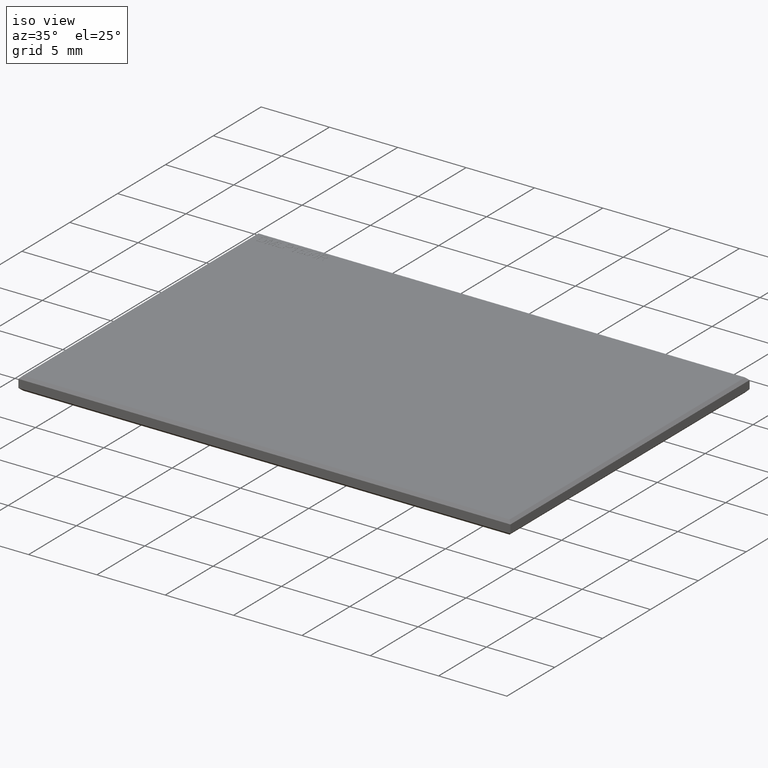
[diagram: clean part render]
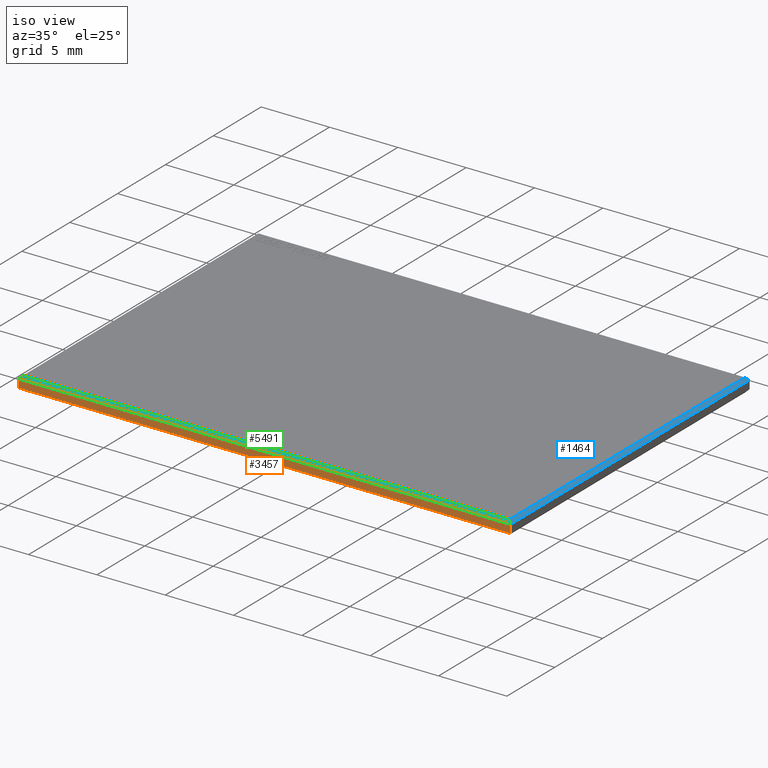
[diagram: same view with three faces highlighted in distinct colors, each labeled with its STEP entity id]
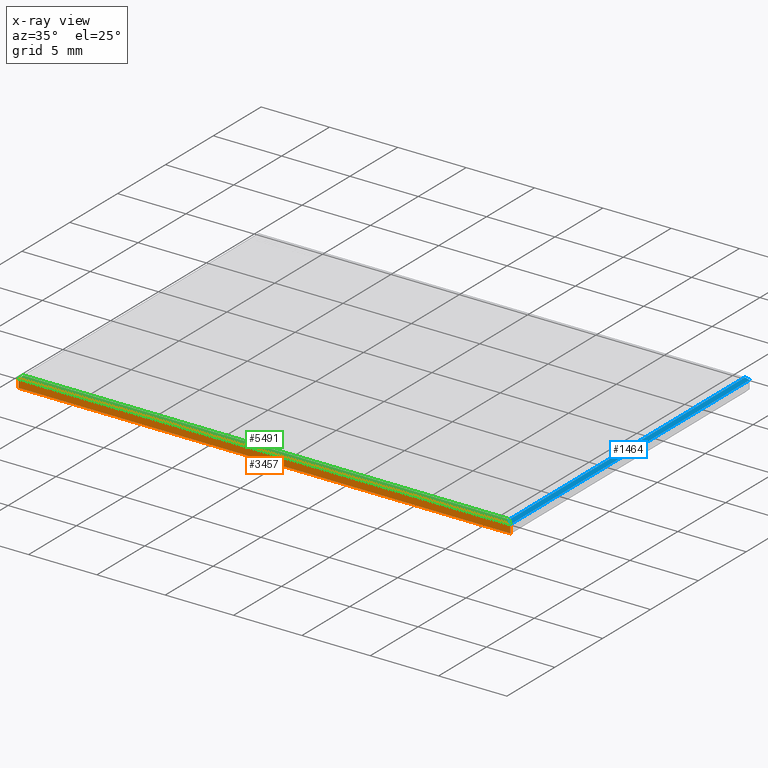
[diagram: x-ray of the same camera — body ghosted, the three highlighted faces saturated]
A machine part, iso view with three faces highlighted in distinct colors.
The next image is the same camera in x-ray (body ghosted, the three faces saturated) — at least one of them is partly hidden behind the body in this view.
Their STEP definitions:

[orange] entity #3457 — the highlighted planar face has unit normal (0, 1, 0).
#156 = EDGE_CURVE ( 'NONE', #203, #3652, #6655, .T. ) ;
#203 = VERTEX_POINT ( 'NONE', #1794 ) ;
#443 = CARTESIAN_POINT ( 'NONE',  ( -18.00000000000000400, -12.49999999999999500, 0.2999999999999977700 ) ) ;
#504 = EDGE_LOOP ( 'NONE', ( #3409, #808, #5786, #2349 ) ) ;
#727 = VERTEX_POINT ( 'NONE', #2726 ) ;
#808 = ORIENTED_EDGE ( 'NONE', *, *, #1823, .T. ) ;
#820 = CARTESIAN_POINT ( 'NONE',  ( -18.00000000000000400, -12.49999999999999500, -0.2999999999999942700 ) ) ;
#1020 = EDGE_CURVE ( 'NONE', #203, #4573, #1838, .T. ) ;
#1155 = EDGE_CURVE ( 'NONE', #3652, #727, #2708, .T. ) ;
#1326 = PLANE ( 'NONE',  #4048 ) ;
#1521 = VECTOR ( 'NONE', #5322, 1000.000000000000000 ) ;
#1794 = CARTESIAN_POINT ( 'NONE',  ( 17.99999999999999600, -12.49999999999999500, 0.2999999999999977100 ) ) ;
#1823 = EDGE_CURVE ( 'NONE', #727, #4573, #3355, .T. ) ;
#1838 = LINE ( 'NONE', #6089, #4570 ) ;
#1853 = DIRECTION ( 'NONE',  ( 0.0000000000000000000, -0.0000000000000000000, 1.000000000000000000 ) ) ;
#1874 = DIRECTION ( 'NONE',  ( 1.000000000000000000, 0.0000000000000000000, 0.0000000000000000000 ) ) ;
#2349 = ORIENTED_EDGE ( 'NONE', *, *, #156, .T. ) ;
#2708 = LINE ( 'NONE', #3321, #1521 ) ;
#2726 = CARTESIAN_POINT ( 'NONE',  ( -18.00000000000000400, -12.49999999999999500, -0.2999999999999942700 ) ) ;
#3193 = VECTOR ( 'NONE', #1874, 1000.000000000000000 ) ;
#3320 = DIRECTION ( 'NONE',  ( -1.000000000000000000, 0.0000000000000000000, 0.0000000000000000000 ) ) ;
#3321 = CARTESIAN_POINT ( 'NONE',  ( -18.00000000000000400, -12.49999999999999500, 0.5000000000000000000 ) ) ;
#3355 = LINE ( 'NONE', #820, #3193 ) ;
#3409 = ORIENTED_EDGE ( 'NONE', *, *, #1155, .T. ) ;
#3457 = ADVANCED_FACE ( 'NONE', ( #4849 ), #1326, .F. ) ;
#3551 = DIRECTION ( 'NONE',  ( -0.0000000000000000000, -0.0000000000000000000, -1.000000000000000000 ) ) ;
#3652 = VERTEX_POINT ( 'NONE', #443 ) ;
#4048 = AXIS2_PLACEMENT_3D ( 'NONE', #4397, #4908, #1853 ) ;
#4231 = VECTOR ( 'NONE', #3320, 1000.000000000000000 ) ;
#4397 = CARTESIAN_POINT ( 'NONE',  ( -18.00000000000000400, -12.49999999999999500, 0.5000000000000000000 ) ) ;
#4570 = VECTOR ( 'NONE', #3551, 1000.000000000000000 ) ;
#4573 = VERTEX_POINT ( 'NONE', #4984 ) ;
#4849 = FACE_OUTER_BOUND ( 'NONE', #504, .T. ) ;
#4908 = DIRECTION ( 'NONE',  ( 0.0000000000000000000, 1.000000000000000000, 0.0000000000000000000 ) ) ;
#4984 = CARTESIAN_POINT ( 'NONE',  ( 17.99999999999999600, -12.49999999999999500, -0.2999999999999942700 ) ) ;
#5322 = DIRECTION ( 'NONE',  ( -0.0000000000000000000, -0.0000000000000000000, -1.000000000000000000 ) ) ;
#5786 = ORIENTED_EDGE ( 'NONE', *, *, #1020, .F. ) ;
#5864 = CARTESIAN_POINT ( 'NONE',  ( -18.00000000000000400, -12.49999999999999500, 0.2999999999999977700 ) ) ;
#6089 = CARTESIAN_POINT ( 'NONE',  ( 17.99999999999999600, -12.49999999999999500, 0.5000000000000000000 ) ) ;
#6655 = LINE ( 'NONE', #5864, #4231 ) ;

[blue] entity #1464 — the highlighted planar face has unit normal (0.7071, 0, 0.7071).
#56 = VECTOR ( 'NONE', #1720, 999.9999999999998900 ) ;
#203 = VERTEX_POINT ( 'NONE', #1794 ) ;
#217 = EDGE_CURVE ( 'NONE', #5963, #1629, #4960, .T. ) ;
#256 = EDGE_CURVE ( 'NONE', #1629, #4775, #4788, .T. ) ;
#566 = ORIENTED_EDGE ( 'NONE', *, *, #5430, .F. ) ;
#573 = ORIENTED_EDGE ( 'NONE', *, *, #217, .F. ) ;
#737 = EDGE_CURVE ( 'NONE', #203, #5963, #5835, .T. ) ;
#795 = ORIENTED_EDGE ( 'NONE', *, *, #256, .F. ) ;
#818 = EDGE_LOOP ( 'NONE', ( #5164, #566, #795, #573 ) ) ;
#890 = PLANE ( 'NONE',  #2369 ) ;
#1405 = DIRECTION ( 'NONE',  ( 0.7071067811865628900, 9.813077866773807700E-017, 0.7071067811865321400 ) ) ;
#1464 = ADVANCED_FACE ( 'NONE', ( #5829 ), #890, .T. ) ;
#1629 = VERTEX_POINT ( 'NONE', #3418 ) ;
#1720 = DIRECTION ( 'NONE',  ( -0.5773502691896123000, 0.5773502691896276200, 0.5773502691896375000 ) ) ;
#1794 = CARTESIAN_POINT ( 'NONE',  ( 17.99999999999999600, -12.49999999999999500, 0.2999999999999977100 ) ) ;
#1894 = CARTESIAN_POINT ( 'NONE',  ( 17.79999999999999700, 12.50000000000000500, 0.5000000000000000000 ) ) ;
#2023 = DIRECTION ( 'NONE',  ( 1.387778780781445700E-016, -1.000000000000000000, 0.0000000000000000000 ) ) ;
#2243 = VECTOR ( 'NONE', #3466, 1000.000000000000100 ) ;
#2369 = AXIS2_PLACEMENT_3D ( 'NONE', #4479, #1405, #4994 ) ;
#2408 = VECTOR ( 'NONE', #5467, 1000.000000000000000 ) ;
#3191 = LINE ( 'NONE', #5071, #5908 ) ;
#3418 = CARTESIAN_POINT ( 'NONE',  ( 17.79999999999999700, 12.30000000000000800, 0.5000000000000000000 ) ) ;
#3466 = DIRECTION ( 'NONE',  ( 0.5773502691896121900, 0.5773502691896275100, -0.5773502691896375000 ) ) ;
#4447 = CARTESIAN_POINT ( 'NONE',  ( 17.80000000000000100, -12.29999999999999700, 0.5000000000000000000 ) ) ;
#4479 = CARTESIAN_POINT ( 'NONE',  ( 17.80000000000000100, 2.470246229790973300E-015, 0.5000000000000000000 ) ) ;
#4705 = CARTESIAN_POINT ( 'NONE',  ( 17.99999999999999300, 12.50000000000000500, 0.2999999999999977700 ) ) ;
#4775 = VERTEX_POINT ( 'NONE', #4705 ) ;
#4788 = LINE ( 'NONE', #6518, #2243 ) ;
#4960 = LINE ( 'NONE', #1894, #2408 ) ;
#4994 = DIRECTION ( 'NONE',  ( 1.387778780781445700E-016, -1.000000000000000000, 0.0000000000000000000 ) ) ;
#5071 = CARTESIAN_POINT ( 'NONE',  ( 17.99999999999999600, -12.49999999999999500, 0.2999999999999977100 ) ) ;
#5164 = ORIENTED_EDGE ( 'NONE', *, *, #737, .F. ) ;
#5430 = EDGE_CURVE ( 'NONE', #4775, #203, #3191, .T. ) ;
#5467 = DIRECTION ( 'NONE',  ( -1.387778780781445700E-016, 1.000000000000000000, 0.0000000000000000000 ) ) ;
#5808 = CARTESIAN_POINT ( 'NONE',  ( 13.70000000000008300, -8.199999999999970900, 4.600000000000095600 ) ) ;
#5829 = FACE_OUTER_BOUND ( 'NONE', #818, .T. ) ;
#5835 = LINE ( 'NONE', #5808, #56 ) ;
#5908 = VECTOR ( 'NONE', #2023, 1000.000000000000000 ) ;
#5963 = VERTEX_POINT ( 'NONE', #4447 ) ;
#6518 = CARTESIAN_POINT ( 'NONE',  ( 11.86666666666694400, 6.366666666666795900, 6.433333333333313100 ) ) ;

[green] entity #5491 — the highlighted planar face has unit normal (-0, -0.7071, 0.7071).
#18 = EDGE_CURVE ( 'NONE', #3652, #3623, #285, .T. ) ;
#56 = VECTOR ( 'NONE', #1720, 999.9999999999998900 ) ;
#138 = ORIENTED_EDGE ( 'NONE', *, *, #156, .F. ) ;
#156 = EDGE_CURVE ( 'NONE', #203, #3652, #6655, .T. ) ;
#203 = VERTEX_POINT ( 'NONE', #1794 ) ;
#285 = LINE ( 'NONE', #4783, #5620 ) ;
#429 = AXIS2_PLACEMENT_3D ( 'NONE', #1043, #4616, #1548 ) ;
#443 = CARTESIAN_POINT ( 'NONE',  ( -18.00000000000000400, -12.49999999999999500, 0.2999999999999977700 ) ) ;
#700 = EDGE_CURVE ( 'NONE', #3623, #5963, #1601, .T. ) ;
#737 = EDGE_CURVE ( 'NONE', #203, #5963, #5835, .T. ) ;
#1043 = CARTESIAN_POINT ( 'NONE',  ( 0.0000000000000000000, -12.29999999999999700, 0.5000000000000000000 ) ) ;
#1548 = DIRECTION ( 'NONE',  ( -1.000000000000000000, 0.0000000000000000000, -0.0000000000000000000 ) ) ;
#1601 = LINE ( 'NONE', #5276, #4160 ) ;
#1696 = DIRECTION ( 'NONE',  ( 1.000000000000000000, 0.0000000000000000000, 0.0000000000000000000 ) ) ;
#1720 = DIRECTION ( 'NONE',  ( -0.5773502691896123000, 0.5773502691896276200, 0.5773502691896375000 ) ) ;
#1721 = DIRECTION ( 'NONE',  ( 0.5773502691896224000, 0.5773502691896224000, 0.5773502691896323900 ) ) ;
#1794 = CARTESIAN_POINT ( 'NONE',  ( 17.99999999999999600, -12.49999999999999500, 0.2999999999999977100 ) ) ;
#3009 = ORIENTED_EDGE ( 'NONE', *, *, #700, .F. ) ;
#3320 = DIRECTION ( 'NONE',  ( -1.000000000000000000, 0.0000000000000000000, 0.0000000000000000000 ) ) ;
#3623 = VERTEX_POINT ( 'NONE', #6546 ) ;
#3652 = VERTEX_POINT ( 'NONE', #443 ) ;
#4099 = PLANE ( 'NONE',  #429 ) ;
#4160 = VECTOR ( 'NONE', #1696, 1000.000000000000000 ) ;
#4231 = VECTOR ( 'NONE', #3320, 1000.000000000000000 ) ;
#4447 = CARTESIAN_POINT ( 'NONE',  ( 17.80000000000000100, -12.29999999999999700, 0.5000000000000000000 ) ) ;
#4561 = FACE_OUTER_BOUND ( 'NONE', #5332, .T. ) ;
#4616 = DIRECTION ( 'NONE',  ( -0.0000000000000000000, -0.7071067811865536800, 0.7071067811865414700 ) ) ;
#4783 = CARTESIAN_POINT ( 'NONE',  ( -11.86666666666673500, -6.366666666666731100, 6.433333333333367300 ) ) ;
#5193 = ORIENTED_EDGE ( 'NONE', *, *, #18, .F. ) ;
#5276 = CARTESIAN_POINT ( 'NONE',  ( 17.99999999999999600, -12.29999999999999700, 0.5000000000000000000 ) ) ;
#5332 = EDGE_LOOP ( 'NONE', ( #5867, #3009, #5193, #138 ) ) ;
#5491 = ADVANCED_FACE ( 'NONE', ( #4561 ), #4099, .T. ) ;
#5620 = VECTOR ( 'NONE', #1721, 1000.000000000000100 ) ;
#5808 = CARTESIAN_POINT ( 'NONE',  ( 13.70000000000008300, -8.199999999999970900, 4.600000000000095600 ) ) ;
#5835 = LINE ( 'NONE', #5808, #56 ) ;
#5864 = CARTESIAN_POINT ( 'NONE',  ( -18.00000000000000400, -12.49999999999999500, 0.2999999999999977700 ) ) ;
#5867 = ORIENTED_EDGE ( 'NONE', *, *, #737, .T. ) ;
#5963 = VERTEX_POINT ( 'NONE', #4447 ) ;
#6546 = CARTESIAN_POINT ( 'NONE',  ( -17.80000000000000400, -12.29999999999999700, 0.5000000000000000000 ) ) ;
#6655 = LINE ( 'NONE', #5864, #4231 ) ;